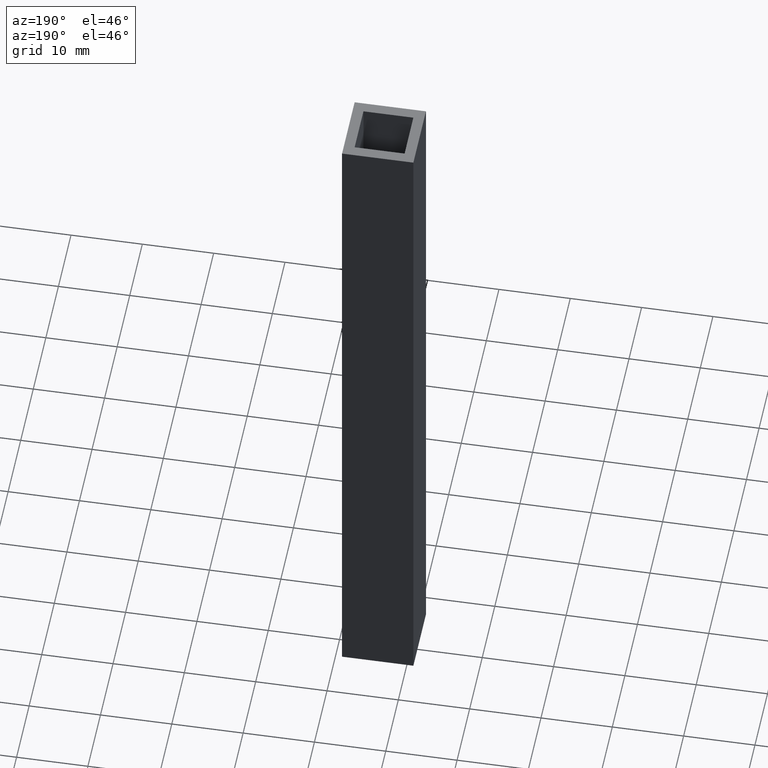
[diagram: clean part render]
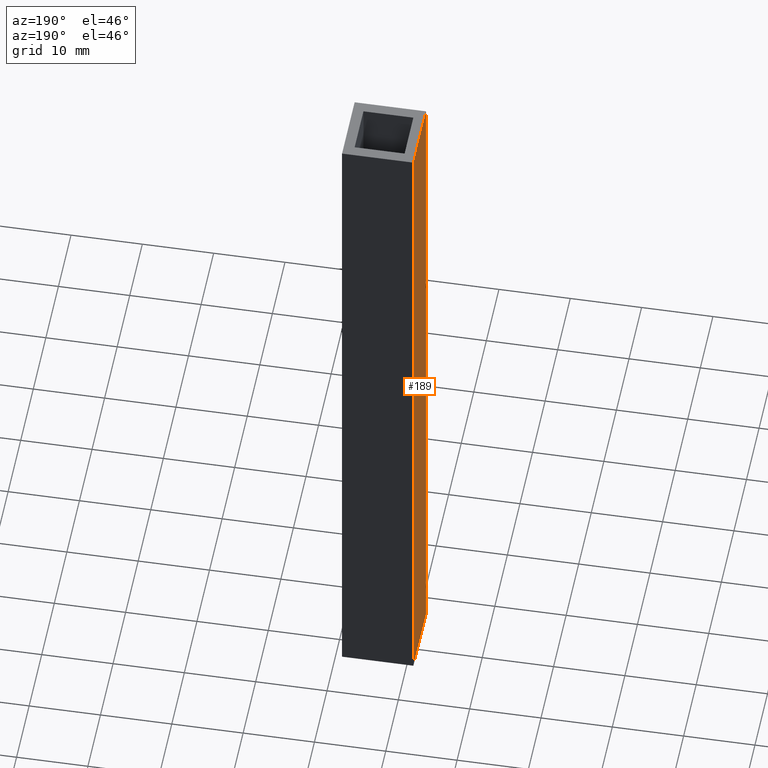
[diagram: same view with one face highlighted and labeled with its STEP entity id]
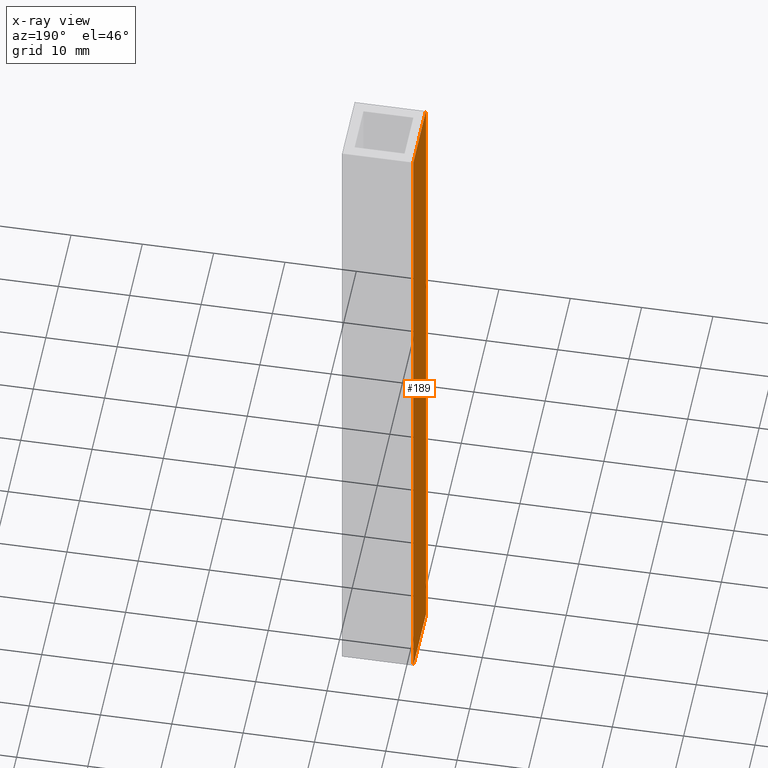
[diagram: x-ray of the same camera — body ghosted, the highlighted face saturated]
A machine part, auxiliary view. The second image highlights one B-rep face of the part: STEP entity #189.
The next image is the same camera in x-ray: the body ghosted, the highlighted face saturated — about 0% of this face is hidden behind the body in this view.
In plain terms, the highlighted planar face has unit normal (-1, 0, 0).
Its self-contained STEP definition (entity closure, byte-faithful):
#21=FACE_OUTER_BOUND('',#31,.T.);
#31=EDGE_LOOP('',(#143,#144,#145,#146));
#51=LINE('',#281,#75);
#52=LINE('',#283,#76);
#53=LINE('',#285,#77);
#54=LINE('',#286,#78);
#75=VECTOR('',#231,10.);
#76=VECTOR('',#232,100.);
#77=VECTOR('',#233,10.);
#78=VECTOR('',#234,100.);
#95=VERTEX_POINT('',#279);
#96=VERTEX_POINT('',#280);
#97=VERTEX_POINT('',#282);
#98=VERTEX_POINT('',#284);
#115=EDGE_CURVE('',#95,#96,#51,.T.);
#116=EDGE_CURVE('',#96,#97,#52,.T.);
#117=EDGE_CURVE('',#98,#97,#53,.T.);
#118=EDGE_CURVE('',#95,#98,#54,.T.);
#143=ORIENTED_EDGE('',*,*,#115,.T.);
#144=ORIENTED_EDGE('',*,*,#116,.T.);
#145=ORIENTED_EDGE('',*,*,#117,.F.);
#146=ORIENTED_EDGE('',*,*,#118,.F.);
#179=PLANE('',#201);
#189=ADVANCED_FACE('',(#21),#179,.T.);
#201=AXIS2_PLACEMENT_3D('',#278,#229,#230);
#229=DIRECTION('center_axis',(-1.,0.,0.));
#230=DIRECTION('ref_axis',(0.,1.,0.));
#231=DIRECTION('',(0.,1.,0.));
#232=DIRECTION('',(0.,0.,-1.));
#233=DIRECTION('',(0.,1.,0.));
#234=DIRECTION('',(0.,0.,-1.));
#278=CARTESIAN_POINT('Origin',(28.8330423541557,24.6378745652133,0.));
#279=CARTESIAN_POINT('',(28.8330423541557,24.6378745652133,0.));
#280=CARTESIAN_POINT('',(28.8330423541557,34.6378745652133,0.));
#281=CARTESIAN_POINT('',(28.8330423541557,24.6378745652133,0.));
#282=CARTESIAN_POINT('',(28.8330423541557,34.6378745652133,-100.));
#283=CARTESIAN_POINT('',(28.8330423541557,34.6378745652133,0.));
#284=CARTESIAN_POINT('',(28.8330423541557,24.6378745652133,-100.));
#285=CARTESIAN_POINT('',(28.8330423541557,24.6378745652133,-100.));
#286=CARTESIAN_POINT('',(28.8330423541557,24.6378745652133,0.));